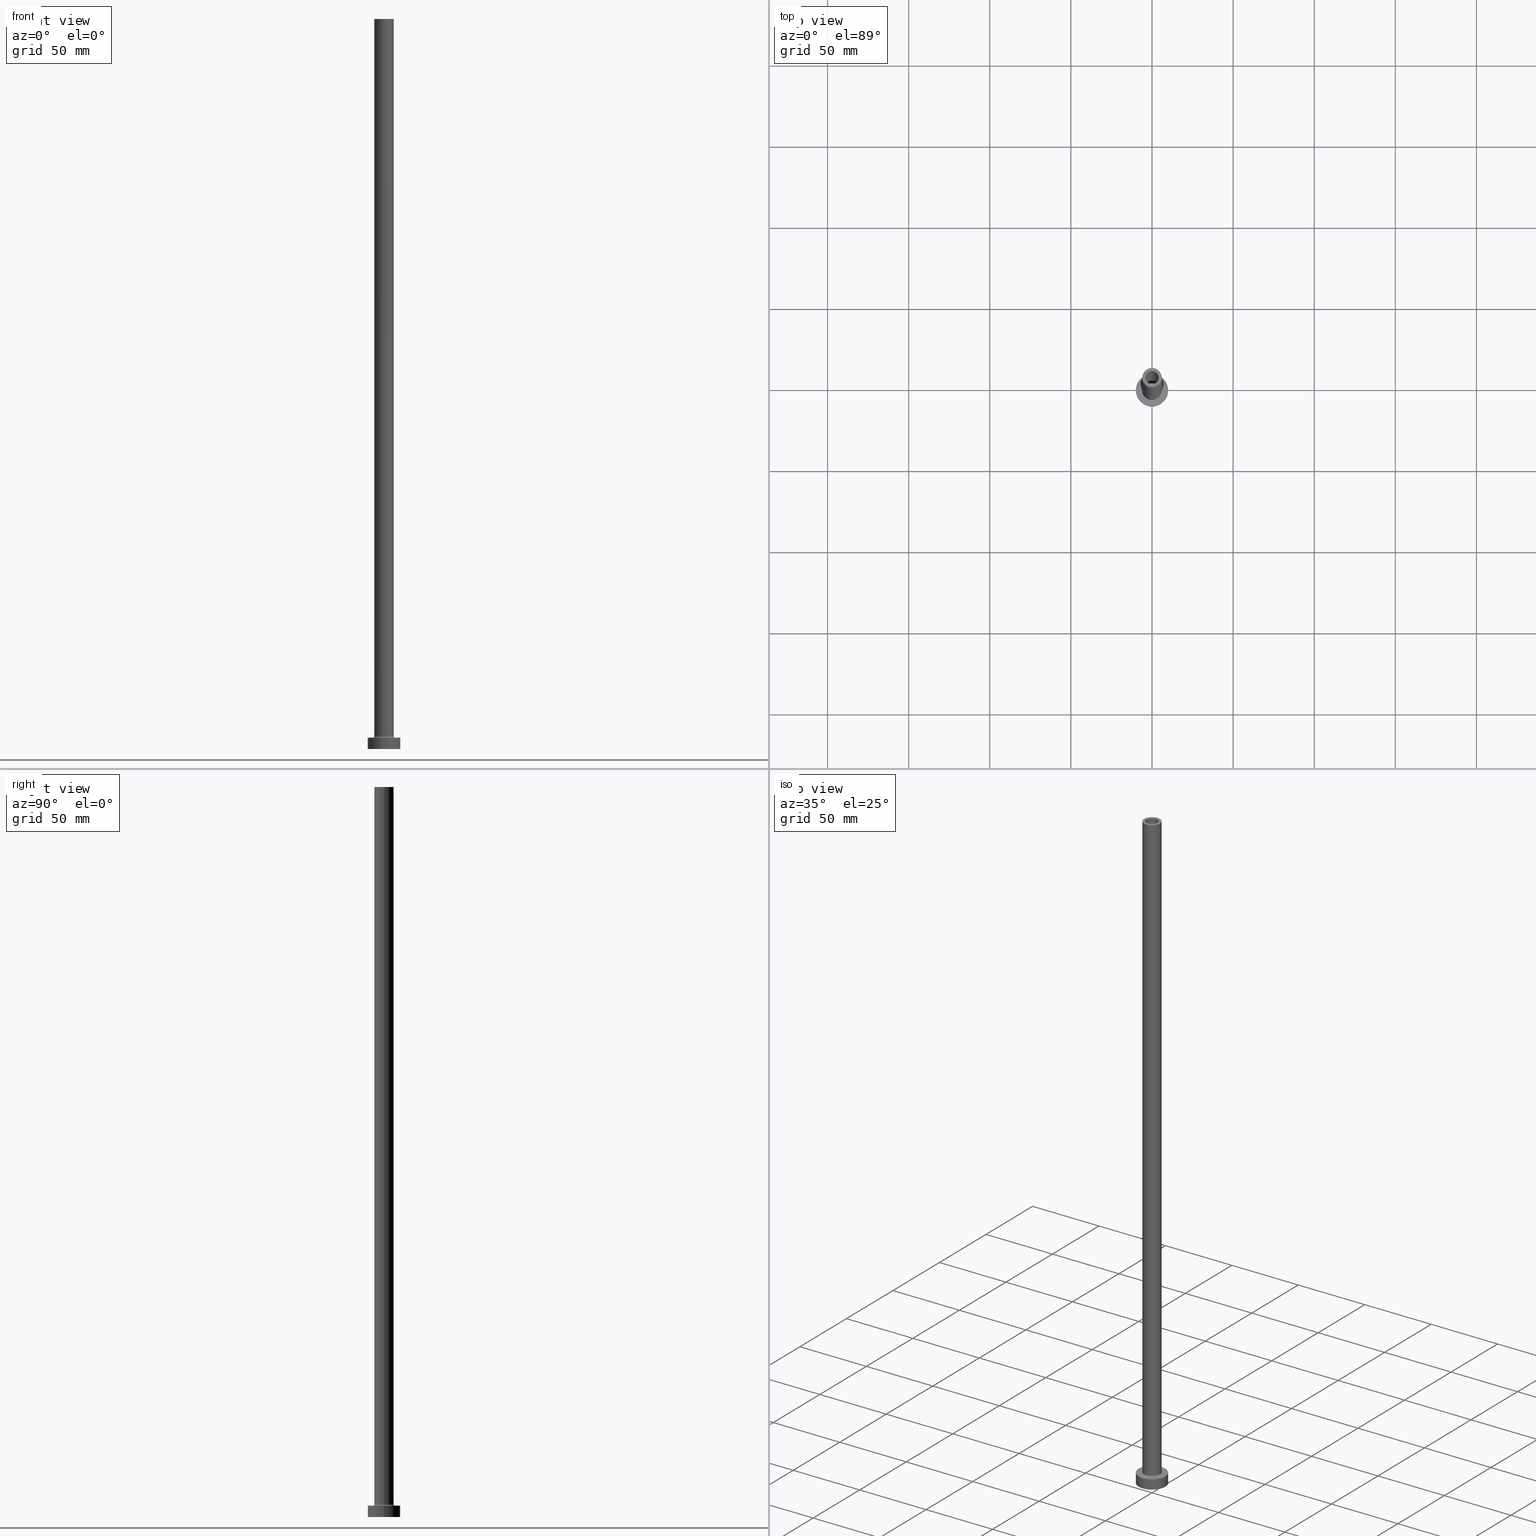
[diagram: canonical four-view strip — front | top / right | iso, engineering-drawing reading convention]
A machine part, canonical four-view strip (front | top / right | iso — engineering-drawing reading convention). The complete STEP part file that produces these views, byte-faithful:
ISO-10303-21;
HEADER;
FILE_DESCRIPTION (( 'STEP AP203' ),
    '1' );
FILE_NAME ('fe47.STEP',
    '2023-02-13T07:39:25',
    ( '' ),
    ( '' ),
    'SwSTEP 2.0',
    'SolidWorks 2019',
    '' );
FILE_SCHEMA (( 'CONFIG_CONTROL_DESIGN' ));
ENDSEC;

DATA;
#1 = ORIENTED_EDGE ( 'NONE', *, *, #76, .F. ) ;
#2 = CC_DESIGN_PERSON_AND_ORGANIZATION_ASSIGNMENT ( #300, #435, ( #51 ) ) ;
#3 = DIRECTION ( 'NONE',  ( 0.000000000000000000, 0.000000000000000000, 1.000000000000000000 ) ) ;
#4 = CIRCLE ( 'NONE', #266, 4.250000000000000000 ) ;
#5 = FACE_OUTER_BOUND ( 'NONE', #144, .T. ) ;
#6 = CIRCLE ( 'NONE', #346, 10.00000000000000000 ) ;
#7 = ORIENTED_EDGE ( 'NONE', *, *, #341, .F. ) ;
#8 = COORDINATED_UNIVERSAL_TIME_OFFSET ( 1, 0, .AHEAD. ) ;
#9 = PLANE ( 'NONE',  #257 ) ;
#10 = CIRCLE ( 'NONE', #359, 4.099999999999999645 ) ;
#11 = CARTESIAN_POINT ( 'NONE',  ( 0.000000000000000000, 0.000000000000000000, 450.0000000000000000 ) ) ;
#12 = EDGE_CURVE ( 'NONE', #15, #177, #4, .T. ) ;
#13 = APPROVAL_PERSON_ORGANIZATION ( #338, #192, #24 ) ;
#14 = CC_DESIGN_PERSON_AND_ORGANIZATION_ASSIGNMENT ( #99, #246, ( #151 ) ) ;
#15 = VERTEX_POINT ( 'NONE', #317 ) ;
#16 = VECTOR ( 'NONE', #42, 1000.000000000000000 ) ;
#17 =( LENGTH_UNIT ( ) NAMED_UNIT ( * ) SI_UNIT ( .MILLI., .METRE. ) );
#18 = APPLICATION_PROTOCOL_DEFINITION ( 'international standard', 'config_control_design', 1994, #254 ) ;
#19 = LINE ( 'NONE', #264, #418 ) ;
#20 = CIRCLE ( 'NONE', #165, 10.00000000000000000 ) ;
#21 = CARTESIAN_POINT ( 'NONE',  ( 0.000000000000000000, 0.000000000000000000, 7.000000000000000000 ) ) ;
#22 = ORIENTED_EDGE ( 'NONE', *, *, #443, .T. ) ;
#23 = ADVANCED_FACE ( 'NONE', ( #451 ), #140, .F. ) ;
#24 = APPROVAL_ROLE ( '' ) ;
#25 = DIRECTION ( 'NONE',  ( 1.000000000000000000, 0.000000000000000000, 0.000000000000000000 ) ) ;
#26 = ORIENTED_EDGE ( 'NONE', *, *, #251, .T. ) ;
#27 = EDGE_CURVE ( 'NONE', #84, #285, #459, .T. ) ;
#28 = ORIENTED_EDGE ( 'NONE', *, *, #251, .F. ) ;
#29 = DIRECTION ( 'NONE',  ( 1.000000000000000000, 0.000000000000000000, 0.000000000000000000 ) ) ;
#30 = LINE ( 'NONE', #189, #120 ) ;
#31 = CIRCLE ( 'NONE', #143, 6.000000000000000888 ) ;
#32 = CARTESIAN_POINT ( 'NONE',  ( 0.000000000000000000, 0.000000000000000000, 7.699999999999985079 ) ) ;
#33 = CC_DESIGN_PERSON_AND_ORGANIZATION_ASSIGNMENT ( #398, #77, ( #255 ) ) ;
#34 = CIRCLE ( 'NONE', #102, 6.000000000000000888 ) ;
#35 = EDGE_LOOP ( 'NONE', ( #273, #277, #184, #188 ) ) ;
#36 = CARTESIAN_POINT ( 'NONE',  ( 4.099999999999999645, 5.021051876504146399E-16, 450.0000000000000000 ) ) ;
#37 = CARTESIAN_POINT ( 'NONE',  ( 4.250000000000000000, 5.204748896376249713E-16, 417.0208152801712913 ) ) ;
#38 = CARTESIAN_POINT ( 'NONE',  ( 0.000000000000000000, 0.000000000000000000, 450.0000000000000000 ) ) ;
#39 = VERTEX_POINT ( 'NONE', #220 ) ;
#40 = AXIS2_PLACEMENT_3D ( 'NONE', #150, #423, #108 ) ;
#41 = PRODUCT_RELATED_PRODUCT_CATEGORY ( 'detail', '', ( #51 ) ) ;
#42 = DIRECTION ( 'NONE',  ( 0.000000000000000000, 0.000000000000000000, -1.000000000000000000 ) ) ;
#43 = DIRECTION ( 'NONE',  ( -1.000000000000000000, 1.224646799147353454E-16, 0.000000000000000000 ) ) ;
#44 = ADVANCED_FACE ( 'NONE', ( #417 ), #104, .T. ) ;
#45 = CARTESIAN_POINT ( 'NONE',  ( -6.000000000000000888, 0.000000000000000000, 450.0000000000000000 ) ) ;
#46 = AXIS2_PLACEMENT_3D ( 'NONE', #379, #387, #203 ) ;
#47 = EDGE_LOOP ( 'NONE', ( #244, #28 ) ) ;
#48 = MANIFOLD_SOLID_BREP ( 'Odebrat vysunut�m4', #138 ) ;
#49 = CARTESIAN_POINT ( 'NONE',  ( 0.000000000000000000, 0.000000000000000000, 417.0208152801712913 ) ) ;
#50 = DIRECTION ( 'NONE',  ( 0.000000000000000000, 0.000000000000000000, -1.000000000000000000 ) ) ;
#51 = PRODUCT ( 'fe47', 'fe47', '', ( #438 ) ) ;
#52 = EDGE_LOOP ( 'NONE', ( #312, #180, #354, #406 ) ) ;
#53 = ORIENTED_EDGE ( 'NONE', *, *, #373, .F. ) ;
#54 = EDGE_CURVE ( 'NONE', #285, #280, #428, .T. ) ;
#55 = PERSON_AND_ORGANIZATION ( #191, #356 ) ;
#56 = CARTESIAN_POINT ( 'NONE',  ( 0.000000000000000000, 0.000000000000000000, 450.0000000000000000 ) ) ;
#57 = ORIENTED_EDGE ( 'NONE', *, *, #454, .T. ) ;
#58 = EDGE_LOOP ( 'NONE', ( #316, #457 ) ) ;
#59 = CARTESIAN_POINT ( 'NONE',  ( 0.000000000000000000, 0.000000000000000000, 450.0000000000000000 ) ) ;
#60 = CARTESIAN_POINT ( 'NONE',  ( 6.700000000000001066, 0.000000000000000000, 6.999999999999992006 ) ) ;
#61 = EDGE_CURVE ( 'NONE', #84, #168, #407, .T. ) ;
#62 = DIRECTION ( 'NONE',  ( 0.000000000000000000, -1.000000000000000000, 0.000000000000000000 ) ) ;
#63 = ORIENTED_EDGE ( 'NONE', *, *, #202, .F. ) ;
#64 = ORIENTED_EDGE ( 'NONE', *, *, #353, .T. ) ;
#65 = AXIS2_PLACEMENT_3D ( 'NONE', #455, #62, #219 ) ;
#66 = SHAPE_DEFINITION_REPRESENTATION ( #170, #439 ) ;
#67 = DIRECTION ( 'NONE',  ( 1.000000000000000000, 0.000000000000000000, 0.000000000000000000 ) ) ;
#68 = VERTEX_POINT ( 'NONE', #409 ) ;
#69 = EDGE_CURVE ( 'NONE', #388, #303, #186, .T. ) ;
#70 = ORIENTED_EDGE ( 'NONE', *, *, #286, .T. ) ;
#71 = SECURITY_CLASSIFICATION ( '', '', #342 ) ;
#72 =( NAMED_UNIT ( * ) PLANE_ANGLE_UNIT ( ) SI_UNIT ( $, .RADIAN. ) );
#73 = AXIS2_PLACEMENT_3D ( 'NONE', #59, #218, #352 ) ;
#74 = AXIS2_PLACEMENT_3D ( 'NONE', #263, #399, #162 ) ;
#75 = ORIENTED_EDGE ( 'NONE', *, *, #341, .T. ) ;
#76 = EDGE_CURVE ( 'NONE', #177, #15, #268, .T. ) ;
#77 = PERSON_AND_ORGANIZATION_ROLE ( 'creator' ) ;
#78 = CARTESIAN_POINT ( 'NONE',  ( -10.00000000000000000, 0.000000000000000000, 0.000000000000000000 ) ) ;
#79 = EDGE_CURVE ( 'NONE', #258, #68, #347, .T. ) ;
#80 = DIRECTION ( 'NONE',  ( -1.000000000000000000, 0.000000000000000000, 0.000000000000000000 ) ) ;
#81 = AXIS2_PLACEMENT_3D ( 'NONE', #21, #335, #313 ) ;
#82 = AXIS2_PLACEMENT_3D ( 'NONE', #305, #382, #309 ) ;
#83 = CARTESIAN_POINT ( 'NONE',  ( 0.000000000000000000, 0.000000000000000000, 7.699999999999985079 ) ) ;
#84 = VERTEX_POINT ( 'NONE', #117 ) ;
#85 = VERTEX_POINT ( 'NONE', #195 ) ;
#86 = CARTESIAN_POINT ( 'NONE',  ( -6.700000000000001066, 8.205133554287267548E-16, 7.699999999999985079 ) ) ;
#87 = EDGE_CURVE ( 'NONE', #177, #386, #325, .T. ) ;
#88 = CC_DESIGN_APPROVAL ( #314, ( #71 ) ) ;
#89 = ORIENTED_EDGE ( 'NONE', *, *, #422, .F. ) ;
#90 = CARTESIAN_POINT ( 'NONE',  ( 0.000000000000000000, 0.000000000000000000, 0.000000000000000000 ) ) ;
#91 = LOCAL_TIME ( 8, 39, 25.00000000000000000, #209 ) ;
#92 = ORIENTED_EDGE ( 'NONE', *, *, #76, .T. ) ;
#93 = EDGE_LOOP ( 'NONE', ( #101, #358, #166, #248 ) ) ;
#94 = CARTESIAN_POINT ( 'NONE',  ( 0.000000000000000000, 0.000000000000000000, 0.000000000000000000 ) ) ;
#95 = DATE_AND_TIME ( #445, #452 ) ;
#96 = ADVANCED_FACE ( 'NONE', ( #297, #133 ), #236, .T. ) ;
#97 = PERSON_AND_ORGANIZATION_ROLE ( 'classification_officer' ) ;
#98 = APPROVAL ( #205, 'NEUR�EN�' ) ;
#99 = PERSON_AND_ORGANIZATION ( #191, #356 ) ;
#100 = VERTEX_POINT ( 'NONE', #344 ) ;
#101 = ORIENTED_EDGE ( 'NONE', *, *, #331, .F. ) ;
#102 = AXIS2_PLACEMENT_3D ( 'NONE', #119, #333, #230 ) ;
#103 = DATE_TIME_ROLE ( 'creation_date' ) ;
#104 = CYLINDRICAL_SURFACE ( 'NONE', #73, 6.000000000000000888 ) ;
#105 = LINE ( 'NONE', #318, #328 ) ;
#106 = CARTESIAN_POINT ( 'NONE',  ( 0.000000000000000000, 0.000000000000000000, 7.000000000000000000 ) ) ;
#107 = LOCAL_TIME ( 8, 39, 25.00000000000000000, #242 ) ;
#108 = DIRECTION ( 'NONE',  ( 1.000000000000000000, 0.000000000000000000, 0.000000000000000000 ) ) ;
#109 = UNCERTAINTY_MEASURE_WITH_UNIT (LENGTH_MEASURE( 1.000000000000000082E-05 ), #17, 'distance_accuracy_value', 'NONE');
#110 = AXIS2_PLACEMENT_3D ( 'NONE', #106, #389, #182 ) ;
#111 = AXIS2_PLACEMENT_3D ( 'NONE', #322, #289, #141 ) ;
#112 = CARTESIAN_POINT ( 'NONE',  ( 0.000000000000000000, 0.000000000000000000, 450.0000000000000000 ) ) ;
#113 = EDGE_CURVE ( 'NONE', #434, #303, #460, .T. ) ;
#114 = DIRECTION ( 'NONE',  ( -0.000000000000000000, -0.000000000000000000, -1.000000000000000000 ) ) ;
#115 = AXIS2_PLACEMENT_3D ( 'NONE', #458, #355, #283 ) ;
#116 = DIRECTION ( 'NONE',  ( 1.224646799147353207E-16, 1.000000000000000000, -0.000000000000000000 ) ) ;
#117 = CARTESIAN_POINT ( 'NONE',  ( -10.00000000000000000, 0.000000000000000000, 7.000000000000000000 ) ) ;
#118 = EDGE_CURVE ( 'NONE', #416, #39, #392, .T. ) ;
#119 = CARTESIAN_POINT ( 'NONE',  ( 0.000000000000000000, 0.000000000000000000, 7.699999999999985079 ) ) ;
#120 = VECTOR ( 'NONE', #287, 1000.000000000000000 ) ;
#121 = APPROVAL_ROLE ( '' ) ;
#122 = VECTOR ( 'NONE', #243, 1000.000000000000000 ) ;
#123 = AXIS2_PLACEMENT_3D ( 'NONE', #441, #215, #279 ) ;
#124 = DIRECTION ( 'NONE',  ( 1.000000000000000000, 0.000000000000000000, 0.000000000000000000 ) ) ;
#125 = CALENDAR_DATE ( 2023, 13, 2 ) ;
#126 = DIRECTION ( 'NONE',  ( -0.000000000000000000, -0.000000000000000000, -1.000000000000000000 ) ) ;
#127 = ORIENTED_EDGE ( 'NONE', *, *, #12, .F. ) ;
#128 =( GEOMETRIC_REPRESENTATION_CONTEXT ( 3 ) GLOBAL_UNCERTAINTY_ASSIGNED_CONTEXT ( ( #109 ) ) GLOBAL_UNIT_ASSIGNED_CONTEXT ( ( #17, #72, #377 ) ) REPRESENTATION_CONTEXT ( 'NONE', 'WORKASPACE' ) );
#129 = CARTESIAN_POINT ( 'NONE',  ( 0.000000000000000000, 0.000000000000000000, 7.000000000000000000 ) ) ;
#130 = CARTESIAN_POINT ( 'NONE',  ( 0.000000000000000000, 0.000000000000000000, 405.0000000000000000 ) ) ;
#131 = DIRECTION ( 'NONE',  ( 1.000000000000000000, 0.000000000000000000, 0.000000000000000000 ) ) ;
#132 = CIRCLE ( 'NONE', #372, 6.700000000000001066 ) ;
#133 = FACE_OUTER_BOUND ( 'NONE', #58, .T. ) ;
#134 = CALENDAR_DATE ( 2023, 13, 2 ) ;
#135 = DIRECTION ( 'NONE',  ( 0.000000000000000000, 0.000000000000000000, -1.000000000000000000 ) ) ;
#136 = DIRECTION ( 'NONE',  ( 1.000000000000000000, 0.000000000000000000, 0.000000000000000000 ) ) ;
#137 = DIRECTION ( 'NONE',  ( 0.000000000000000000, 0.000000000000000000, 1.000000000000000000 ) ) ;
#138 = CLOSED_SHELL ( 'NONE', ( #197, #169, #156, #427, #431, #294, #96, #149, #44, #291, #227, #366, #334, #23 ) ) ;
#139 = CC_DESIGN_APPROVAL ( #98, ( #255 ) ) ;
#140 = CYLINDRICAL_SURFACE ( 'NONE', #301, 4.099999999999999645 ) ;
#141 = DIRECTION ( 'NONE',  ( -1.000000000000000000, 0.000000000000000000, 0.000000000000000000 ) ) ;
#142 = EDGE_CURVE ( 'NONE', #446, #386, #185, .T. ) ;
#143 = AXIS2_PLACEMENT_3D ( 'NONE', #32, #3, #288 ) ;
#144 = EDGE_LOOP ( 'NONE', ( #7, #360, #339, #153 ) ) ;
#145 = DIRECTION ( 'NONE',  ( 1.000000000000000000, 0.000000000000000000, 0.000000000000000000 ) ) ;
#146 = FACE_OUTER_BOUND ( 'NONE', #211, .T. ) ;
#147 = ORIENTED_EDGE ( 'NONE', *, *, #353, .F. ) ;
#148 = CC_DESIGN_SECURITY_CLASSIFICATION ( #71, ( #151 ) ) ;
#149 = ADVANCED_FACE ( 'NONE', ( #412, #381 ), #207, .F. ) ;
#150 = CARTESIAN_POINT ( 'NONE',  ( 0.000000000000000000, 0.000000000000000000, 450.0000000000000000 ) ) ;
#151 = PRODUCT_DEFINITION_FORMATION_WITH_SPECIFIED_SOURCE ( 'LIBOVOLN�', '', #51, .NOT_KNOWN. ) ;
#152 = CIRCLE ( 'NONE', #450, 0.7000000000000000666 ) ;
#153 = ORIENTED_EDGE ( 'NONE', *, *, #391, .F. ) ;
#154 = APPROVAL_ROLE ( '' ) ;
#155 = DIRECTION ( 'NONE',  ( -1.000000000000000000, 0.000000000000000000, 0.000000000000000000 ) ) ;
#156 = ADVANCED_FACE ( 'NONE', ( #404 ), #201, .F. ) ;
#157 = DIRECTION ( 'NONE',  ( 0.000000000000000000, 0.000000000000000000, -1.000000000000000000 ) ) ;
#158 = AXIS2_PLACEMENT_3D ( 'NONE', #420, #378, #29 ) ;
#159 = AXIS2_PLACEMENT_3D ( 'NONE', #216, #350, #380 ) ;
#160 = DIRECTION ( 'NONE',  ( 0.000000000000000000, 0.000000000000000000, 1.000000000000000000 ) ) ;
#161 = DIRECTION ( 'NONE',  ( 0.000000000000000000, 0.000000000000000000, -1.000000000000000000 ) ) ;
#162 = DIRECTION ( 'NONE',  ( -1.000000000000000000, 0.000000000000000000, 0.000000000000000000 ) ) ;
#163 = EDGE_CURVE ( 'NONE', #168, #84, #6, .T. ) ;
#164 = AXIS2_PLACEMENT_3D ( 'NONE', #38, #402, #155 ) ;
#165 = AXIS2_PLACEMENT_3D ( 'NONE', #90, #160, #370 ) ;
#166 = ORIENTED_EDGE ( 'NONE', *, *, #118, .F. ) ;
#167 = FACE_BOUND ( 'NONE', #403, .T. ) ;
#168 = VERTEX_POINT ( 'NONE', #171 ) ;
#169 = ADVANCED_FACE ( 'NONE', ( #234 ), #444, .F. ) ;
#170 = PRODUCT_DEFINITION_SHAPE ( 'NONE', 'NONE',  #255 ) ;
#171 = CARTESIAN_POINT ( 'NONE',  ( 10.00000000000000000, 1.224646799147353256E-15, 7.000000000000000000 ) ) ;
#172 = ORIENTED_EDGE ( 'NONE', *, *, #324, .T. ) ;
#173 = CC_DESIGN_APPROVAL ( #192, ( #151 ) ) ;
#174 = ORIENTED_EDGE ( 'NONE', *, *, #113, .T. ) ;
#175 = CC_DESIGN_PERSON_AND_ORGANIZATION_ASSIGNMENT ( #55, #310, ( #151 ) ) ;
#176 = CARTESIAN_POINT ( 'NONE',  ( 0.000000000000000000, 0.000000000000000000, 7.699999999999985079 ) ) ;
#177 = VERTEX_POINT ( 'NONE', #410 ) ;
#178 = DIRECTION ( 'NONE',  ( -0.000000000000000000, -0.000000000000000000, -1.000000000000000000 ) ) ;
#179 = PERSON_AND_ORGANIZATION ( #191, #356 ) ;
#180 = ORIENTED_EDGE ( 'NONE', *, *, #87, .T. ) ;
#181 = CARTESIAN_POINT ( 'NONE',  ( -4.099999999999999645, 0.000000000000000000, 450.0000000000000000 ) ) ;
#182 = DIRECTION ( 'NONE',  ( 1.000000000000000000, 0.000000000000000000, 0.000000000000000000 ) ) ;
#183 = FACE_BOUND ( 'NONE', #415, .T. ) ;
#184 = ORIENTED_EDGE ( 'NONE', *, *, #27, .T. ) ;
#185 = CIRCLE ( 'NONE', #213, 4.250000000000000000 ) ;
#186 = LINE ( 'NONE', #413, #290 ) ;
#187 = DIRECTION ( 'NONE',  ( -0.000000000000000000, -0.000000000000000000, -1.000000000000000000 ) ) ;
#188 = ORIENTED_EDGE ( 'NONE', *, *, #54, .T. ) ;
#189 = CARTESIAN_POINT ( 'NONE',  ( 6.000000000000000888, 7.347880794884120722E-16, 450.0000000000000000 ) ) ;
#190 = FACE_OUTER_BOUND ( 'NONE', #238, .T. ) ;
#191 = PERSON ( 'NEUR�EN�', 'NEUR�EN�', 'NEUR�EN�', ('NEUR�EN�'), ('NEUR�EN�'), ('NEUR�EN�') ) ;
#192 = APPROVAL ( #414, 'NEUR�EN�' ) ;
#193 = DATE_AND_TIME ( #199, #304 ) ;
#194 = ORIENTED_EDGE ( 'NONE', *, *, #79, .F. ) ;
#195 = CARTESIAN_POINT ( 'NONE',  ( 6.000000000000000888, 7.347880794884120722E-16, 7.699999999999985079 ) ) ;
#196 = CARTESIAN_POINT ( 'NONE',  ( -4.250000000000000000, 0.000000000000000000, 0.000000000000000000 ) ) ;
#197 = ADVANCED_FACE ( 'NONE', ( #146 ), #253, .F. ) ;
#198 = ORIENTED_EDGE ( 'NONE', *, *, #163, .F. ) ;
#199 = CALENDAR_DATE ( 2023, 13, 2 ) ;
#200 = CARTESIAN_POINT ( 'NONE',  ( 4.099999999999999645, 5.021051876504146399E-16, 405.0000000000000000 ) ) ;
#201 = TOROIDAL_SURFACE ( 'NONE', #363, 6.700000000000001066, 0.6999999999999999556 ) ;
#202 = EDGE_CURVE ( 'NONE', #100, #39, #152, .T. ) ;
#203 = DIRECTION ( 'NONE',  ( -1.000000000000000000, 0.000000000000000000, 0.000000000000000000 ) ) ;
#204 = ORIENTED_EDGE ( 'NONE', *, *, #443, .F. ) ;
#205 = APPROVAL_STATUS ( 'not_yet_approved' ) ;
#206 = CARTESIAN_POINT ( 'NONE',  ( 10.00000000000000000, 1.224646799147353256E-15, 0.000000000000000000 ) ) ;
#207 = PLANE ( 'NONE',  #261 ) ;
#208 = DIRECTION ( 'NONE',  ( 0.000000000000000000, 0.000000000000000000, -1.000000000000000000 ) ) ;
#209 = COORDINATED_UNIVERSAL_TIME_OFFSET ( 1, 0, .AHEAD. ) ;
#210 = ORIENTED_EDGE ( 'NONE', *, *, #245, .F. ) ;
#211 = EDGE_LOOP ( 'NONE', ( #256, #57, #210, #453 ) ) ;
#212 = ORIENTED_EDGE ( 'NONE', *, *, #237, .F. ) ;
#213 = AXIS2_PLACEMENT_3D ( 'NONE', #94, #178, #136 ) ;
#214 = CARTESIAN_POINT ( 'NONE',  ( 0.000000000000000000, 0.000000000000000000, 0.000000000000000000 ) ) ;
#215 = DIRECTION ( 'NONE',  ( 0.000000000000000000, 0.000000000000000000, 1.000000000000000000 ) ) ;
#216 = CARTESIAN_POINT ( 'NONE',  ( 0.000000000000000000, 0.000000000000000000, 450.0000000000000000 ) ) ;
#217 = ORIENTED_EDGE ( 'NONE', *, *, #331, .T. ) ;
#218 = DIRECTION ( 'NONE',  ( -0.000000000000000000, -0.000000000000000000, -1.000000000000000000 ) ) ;
#219 = DIRECTION ( 'NONE',  ( 0.000000000000000000, 0.000000000000000000, -1.000000000000000000 ) ) ;
#220 = CARTESIAN_POINT ( 'NONE',  ( -6.700000000000001066, 8.205133554287267548E-16, 6.999999999999992006 ) ) ;
#221 = CYLINDRICAL_SURFACE ( 'NONE', #111, 4.250000000000000000 ) ;
#222 = ORIENTED_EDGE ( 'NONE', *, *, #118, .T. ) ;
#223 = AXIS2_PLACEMENT_3D ( 'NONE', #49, #208, #449 ) ;
#224 = CC_DESIGN_PERSON_AND_ORGANIZATION_ASSIGNMENT ( #411, #97, ( #71 ) ) ;
#225 = DESIGN_CONTEXT ( 'detailed design', #296, 'design' ) ;
#226 = DIRECTION ( 'NONE',  ( 0.000000000000000000, 0.000000000000000000, 1.000000000000000000 ) ) ;
#227 = ADVANCED_FACE ( 'NONE', ( #365 ), #437, .F. ) ;
#228 = DIRECTION ( 'NONE',  ( 0.000000000000000000, 0.000000000000000000, 1.000000000000000000 ) ) ;
#229 = CARTESIAN_POINT ( 'NONE',  ( 0.000000000000000000, 0.000000000000000000, 0.000000000000000000 ) ) ;
#230 = DIRECTION ( 'NONE',  ( 1.000000000000000000, 0.000000000000000000, 0.000000000000000000 ) ) ;
#231 = CYLINDRICAL_SURFACE ( 'NONE', #433, 10.00000000000000000 ) ;
#232 = APPLICATION_PROTOCOL_DEFINITION ( 'international standard', 'config_control_design', 1994, #296 ) ;
#233 = LINE ( 'NONE', #432, #319 ) ;
#234 = FACE_OUTER_BOUND ( 'NONE', #52, .T. ) ;
#235 = ORIENTED_EDGE ( 'NONE', *, *, #113, .F. ) ;
#236 = PLANE ( 'NONE',  #81 ) ;
#237 = EDGE_CURVE ( 'NONE', #85, #100, #34, .T. ) ;
#238 = EDGE_LOOP ( 'NONE', ( #302, #92, #70, #442 ) ) ;
#239 = DIRECTION ( 'NONE',  ( 0.000000000000000000, 0.000000000000000000, 1.000000000000000000 ) ) ;
#240 = APPROVAL_DATE_TIME ( #95, #192 ) ;
#241 = EDGE_LOOP ( 'NONE', ( #198, #426, #26, #374 ) ) ;
#242 = COORDINATED_UNIVERSAL_TIME_OFFSET ( 1, 0, .AHEAD. ) ;
#243 = DIRECTION ( 'NONE',  ( -0.000000000000000000, -0.000000000000000000, -1.000000000000000000 ) ) ;
#244 = ORIENTED_EDGE ( 'NONE', *, *, #54, .F. ) ;
#245 = EDGE_CURVE ( 'NONE', #303, #434, #10, .T. ) ;
#246 = PERSON_AND_ORGANIZATION_ROLE ( 'creator' ) ;
#247 = AXIS2_PLACEMENT_3D ( 'NONE', #83, #267, #299 ) ;
#248 = ORIENTED_EDGE ( 'NONE', *, *, #324, .F. ) ;
#249 = DATE_AND_TIME ( #134, #91 ) ;
#250 = DIRECTION ( 'NONE',  ( -0.000000000000000000, -0.000000000000000000, -1.000000000000000000 ) ) ;
#251 = EDGE_CURVE ( 'NONE', #280, #285, #20, .T. ) ;
#252 = FACE_OUTER_BOUND ( 'NONE', #405, .T. ) ;
#253 = CYLINDRICAL_SURFACE ( 'NONE', #46, 4.099999999999999645 ) ;
#254 = APPLICATION_CONTEXT ( 'configuration controlled 3d designs of mechanical parts and assemblies' ) ;
#255 = PRODUCT_DEFINITION ( 'NEZN�M�', '', #151, #225 ) ;
#256 = ORIENTED_EDGE ( 'NONE', *, *, #373, .T. ) ;
#257 = AXIS2_PLACEMENT_3D ( 'NONE', #11, #293, #362 ) ;
#258 = VERTEX_POINT ( 'NONE', #45 ) ;
#259 = EDGE_CURVE ( 'NONE', #168, #280, #233, .T. ) ;
#260 = LINE ( 'NONE', #367, #16 ) ;
#261 = AXIS2_PLACEMENT_3D ( 'NONE', #349, #239, #371 ) ;
#262 = FACE_OUTER_BOUND ( 'NONE', #241, .T. ) ;
#263 = CARTESIAN_POINT ( 'NONE',  ( 0.000000000000000000, 0.000000000000000000, 7.000000000000000000 ) ) ;
#264 = CARTESIAN_POINT ( 'NONE',  ( -4.250000000000000000, 0.000000000000000000, 417.0208152801712913 ) ) ;
#265 = CARTESIAN_POINT ( 'NONE',  ( 0.000000000000000000, 0.000000000000000000, 7.000000000000000000 ) ) ;
#266 = AXIS2_PLACEMENT_3D ( 'NONE', #130, #275, #25 ) ;
#267 = DIRECTION ( 'NONE',  ( 0.000000000000000000, 0.000000000000000000, 1.000000000000000000 ) ) ;
#268 = CIRCLE ( 'NONE', #82, 4.250000000000000000 ) ;
#269 = DATE_AND_TIME ( #125, #307 ) ;
#270 = COORDINATED_UNIVERSAL_TIME_OFFSET ( 1, 0, .AHEAD. ) ;
#271 = EDGE_LOOP ( 'NONE', ( #89, #194, #343, #217 ) ) ;
#272 = CIRCLE ( 'NONE', #357, 4.099999999999999645 ) ;
#273 = ORIENTED_EDGE ( 'NONE', *, *, #259, .F. ) ;
#274 = COORDINATED_UNIVERSAL_TIME_OFFSET ( 1, 0, .AHEAD. ) ;
#275 = DIRECTION ( 'NONE',  ( 0.000000000000000000, 0.000000000000000000, 1.000000000000000000 ) ) ;
#276 = AXIS2_PLACEMENT_3D ( 'NONE', #214, #447, #131 ) ;
#277 = ORIENTED_EDGE ( 'NONE', *, *, #61, .F. ) ;
#278 = CARTESIAN_POINT ( 'NONE',  ( -10.00000000000000000, 0.000000000000000000, 7.000000000000000000 ) ) ;
#279 = DIRECTION ( 'NONE',  ( 1.000000000000000000, 0.000000000000000000, 0.000000000000000000 ) ) ;
#280 = VERTEX_POINT ( 'NONE', #206 ) ;
#281 = CC_DESIGN_DATE_AND_TIME_ASSIGNMENT ( #249, #103, ( #255 ) ) ;
#282 = DIRECTION ( 'NONE',  ( 1.000000000000000000, 0.000000000000000000, 0.000000000000000000 ) ) ;
#283 = DIRECTION ( 'NONE',  ( 1.000000000000000000, 0.000000000000000000, -0.000000000000000000 ) ) ;
#284 = DIRECTION ( 'NONE',  ( -1.000000000000000000, 0.000000000000000000, 0.000000000000000000 ) ) ;
#285 = VERTEX_POINT ( 'NONE', #78 ) ;
#286 = EDGE_CURVE ( 'NONE', #15, #446, #19, .T. ) ;
#287 = DIRECTION ( 'NONE',  ( -0.000000000000000000, -0.000000000000000000, -1.000000000000000000 ) ) ;
#288 = DIRECTION ( 'NONE',  ( 1.000000000000000000, 0.000000000000000000, 0.000000000000000000 ) ) ;
#289 = DIRECTION ( 'NONE',  ( 0.000000000000000000, 0.000000000000000000, -1.000000000000000000 ) ) ;
#290 = VECTOR ( 'NONE', #50, 1000.000000000000000 ) ;
#291 = ADVANCED_FACE ( 'NONE', ( #167, #327 ), #9, .T. ) ;
#292 = EDGE_LOOP ( 'NONE', ( #425, #75 ) ) ;
#293 = DIRECTION ( 'NONE',  ( 0.000000000000000000, 0.000000000000000000, 1.000000000000000000 ) ) ;
#294 = ADVANCED_FACE ( 'NONE', ( #361 ), #429, .T. ) ;
#295 = CIRCLE ( 'NONE', #65, 0.7000000000000000666 ) ;
#296 = APPLICATION_CONTEXT ( 'configuration controlled 3d designs of mechanical parts and assemblies' ) ;
#297 = FACE_BOUND ( 'NONE', #424, .T. ) ;
#298 = DIRECTION ( 'NONE',  ( 1.000000000000000000, 0.000000000000000000, 0.000000000000000000 ) ) ;
#299 = DIRECTION ( 'NONE',  ( 1.000000000000000000, 0.000000000000000000, 0.000000000000000000 ) ) ;
#300 = PERSON_AND_ORGANIZATION ( #191, #356 ) ;
#301 = AXIS2_PLACEMENT_3D ( 'NONE', #56, #135, #284 ) ;
#302 = ORIENTED_EDGE ( 'NONE', *, *, #87, .F. ) ;
#303 = VERTEX_POINT ( 'NONE', #400 ) ;
#304 = LOCAL_TIME ( 8, 39, 25.00000000000000000, #8 ) ;
#305 = CARTESIAN_POINT ( 'NONE',  ( 0.000000000000000000, 0.000000000000000000, 405.0000000000000000 ) ) ;
#306 = AXIS2_PLACEMENT_3D ( 'NONE', #229, #226, #298 ) ;
#307 = LOCAL_TIME ( 8, 39, 25.00000000000000000, #270 ) ;
#308 = DIRECTION ( 'NONE',  ( 1.000000000000000000, 0.000000000000000000, 0.000000000000000000 ) ) ;
#309 = DIRECTION ( 'NONE',  ( 1.000000000000000000, 0.000000000000000000, 0.000000000000000000 ) ) ;
#310 = PERSON_AND_ORGANIZATION_ROLE ( 'design_supplier' ) ;
#311 = CIRCLE ( 'NONE', #364, 4.099999999999999645 ) ;
#312 = ORIENTED_EDGE ( 'NONE', *, *, #12, .T. ) ;
#313 = DIRECTION ( 'NONE',  ( 1.000000000000000000, 0.000000000000000000, -0.000000000000000000 ) ) ;
#314 = APPROVAL ( #393, 'NEUR�EN�' ) ;
#315 = VERTEX_POINT ( 'NONE', #36 ) ;
#316 = ORIENTED_EDGE ( 'NONE', *, *, #61, .T. ) ;
#317 = CARTESIAN_POINT ( 'NONE',  ( -4.250000000000000000, 0.000000000000000000, 405.0000000000000000 ) ) ;
#318 = CARTESIAN_POINT ( 'NONE',  ( -6.000000000000000888, 0.000000000000000000, 450.0000000000000000 ) ) ;
#319 = VECTOR ( 'NONE', #430, 1000.000000000000000 ) ;
#320 = EDGE_CURVE ( 'NONE', #386, #446, #336, .T. ) ;
#321 = EDGE_LOOP ( 'NONE', ( #448, #22, #348, #235 ) ) ;
#322 = CARTESIAN_POINT ( 'NONE',  ( 0.000000000000000000, 0.000000000000000000, 417.0208152801712913 ) ) ;
#323 = APPROVAL_DATE_TIME ( #193, #314 ) ;
#324 = EDGE_CURVE ( 'NONE', #85, #416, #295, .T. ) ;
#325 = LINE ( 'NONE', #37, #408 ) ;
#326 = ORIENTED_EDGE ( 'NONE', *, *, #320, .F. ) ;
#327 = FACE_OUTER_BOUND ( 'NONE', #292, .T. ) ;
#328 = VECTOR ( 'NONE', #250, 1000.000000000000000 ) ;
#329 = APPROVAL_PERSON_ORGANIZATION ( #369, #98, #121 ) ;
#330 = DIRECTION ( 'NONE',  ( 1.000000000000000000, 0.000000000000000000, 0.000000000000000000 ) ) ;
#331 = EDGE_CURVE ( 'NONE', #100, #85, #31, .T. ) ;
#332 = CIRCLE ( 'NONE', #40, 6.000000000000000888 ) ;
#333 = DIRECTION ( 'NONE',  ( 0.000000000000000000, 0.000000000000000000, 1.000000000000000000 ) ) ;
#334 = ADVANCED_FACE ( 'NONE', ( #183, #252 ), #461, .F. ) ;
#335 = DIRECTION ( 'NONE',  ( 0.000000000000000000, 0.000000000000000000, 1.000000000000000000 ) ) ;
#336 = CIRCLE ( 'NONE', #276, 4.250000000000000000 ) ;
#337 = DIRECTION ( 'NONE',  ( 0.000000000000000000, 0.000000000000000000, 1.000000000000000000 ) ) ;
#338 = PERSON_AND_ORGANIZATION ( #191, #356 ) ;
#339 = ORIENTED_EDGE ( 'NONE', *, *, #237, .T. ) ;
#340 = ORIENTED_EDGE ( 'NONE', *, *, #142, .F. ) ;
#341 = EDGE_CURVE ( 'NONE', #68, #258, #332, .T. ) ;
#342 = SECURITY_CLASSIFICATION_LEVEL ( 'unclassified' ) ;
#343 = ORIENTED_EDGE ( 'NONE', *, *, #391, .T. ) ;
#344 = CARTESIAN_POINT ( 'NONE',  ( -6.000000000000000888, 0.000000000000000000, 7.699999999999985079 ) ) ;
#345 = DATE_AND_TIME ( #376, #107 ) ;
#346 = AXIS2_PLACEMENT_3D ( 'NONE', #456, #337, #282 ) ;
#347 = CIRCLE ( 'NONE', #159, 6.000000000000000888 ) ;
#348 = ORIENTED_EDGE ( 'NONE', *, *, #69, .T. ) ;
#349 = CARTESIAN_POINT ( 'NONE',  ( 0.000000000000000000, 0.000000000000000000, 0.000000000000000000 ) ) ;
#350 = DIRECTION ( 'NONE',  ( 0.000000000000000000, 0.000000000000000000, 1.000000000000000000 ) ) ;
#351 = APPROVAL_PERSON_ORGANIZATION ( #179, #314, #154 ) ;
#352 = DIRECTION ( 'NONE',  ( -1.000000000000000000, 0.000000000000000000, 0.000000000000000000 ) ) ;
#353 = EDGE_CURVE ( 'NONE', #39, #416, #132, .T. ) ;
#354 = ORIENTED_EDGE ( 'NONE', *, *, #320, .T. ) ;
#355 = DIRECTION ( 'NONE',  ( 0.000000000000000000, 0.000000000000000000, 1.000000000000000000 ) ) ;
#356 = ORGANIZATION ( 'NEUR�EN�', 'NEUR�EN�', '' ) ;
#357 = AXIS2_PLACEMENT_3D ( 'NONE', #401, #228, #330 ) ;
#358 = ORIENTED_EDGE ( 'NONE', *, *, #202, .T. ) ;
#359 = AXIS2_PLACEMENT_3D ( 'NONE', #440, #436, #124 ) ;
#360 = ORIENTED_EDGE ( 'NONE', *, *, #422, .T. ) ;
#361 = FACE_OUTER_BOUND ( 'NONE', #35, .T. ) ;
#362 = DIRECTION ( 'NONE',  ( 1.000000000000000000, 0.000000000000000000, -0.000000000000000000 ) ) ;
#363 = AXIS2_PLACEMENT_3D ( 'NONE', #176, #137, #375 ) ;
#364 = AXIS2_PLACEMENT_3D ( 'NONE', #112, #394, #67 ) ;
#365 = FACE_OUTER_BOUND ( 'NONE', #390, .T. ) ;
#366 = ADVANCED_FACE ( 'NONE', ( #190 ), #221, .F. ) ;
#367 = CARTESIAN_POINT ( 'NONE',  ( 4.099999999999999645, 5.021051876504146399E-16, 450.0000000000000000 ) ) ;
#368 = APPROVAL_DATE_TIME ( #269, #98 ) ;
#369 = PERSON_AND_ORGANIZATION ( #191, #356 ) ;
#370 = DIRECTION ( 'NONE',  ( 1.000000000000000000, 0.000000000000000000, 0.000000000000000000 ) ) ;
#371 = DIRECTION ( 'NONE',  ( 1.000000000000000000, 0.000000000000000000, -0.000000000000000000 ) ) ;
#372 = AXIS2_PLACEMENT_3D ( 'NONE', #421, #187, #145 ) ;
#373 = EDGE_CURVE ( 'NONE', #388, #315, #311, .T. ) ;
#374 = ORIENTED_EDGE ( 'NONE', *, *, #27, .F. ) ;
#375 = DIRECTION ( 'NONE',  ( 1.000000000000000000, 0.000000000000000000, 0.000000000000000000 ) ) ;
#376 = CALENDAR_DATE ( 2023, 13, 2 ) ;
#377 =( NAMED_UNIT ( * ) SI_UNIT ( $, .STERADIAN. ) SOLID_ANGLE_UNIT ( ) );
#378 = DIRECTION ( 'NONE',  ( 0.000000000000000000, 0.000000000000000000, 1.000000000000000000 ) ) ;
#379 = CARTESIAN_POINT ( 'NONE',  ( 0.000000000000000000, 0.000000000000000000, 450.0000000000000000 ) ) ;
#380 = DIRECTION ( 'NONE',  ( 1.000000000000000000, 0.000000000000000000, 0.000000000000000000 ) ) ;
#381 = FACE_OUTER_BOUND ( 'NONE', #47, .T. ) ;
#382 = DIRECTION ( 'NONE',  ( 0.000000000000000000, 0.000000000000000000, 1.000000000000000000 ) ) ;
#383 = DATE_TIME_ROLE ( 'classification_date' ) ;
#384 = EDGE_LOOP ( 'NONE', ( #340, #326 ) ) ;
#385 = AXIS2_PLACEMENT_3D ( 'NONE', #129, #126, #308 ) ;
#386 = VERTEX_POINT ( 'NONE', #419 ) ;
#387 = DIRECTION ( 'NONE',  ( 0.000000000000000000, 0.000000000000000000, -1.000000000000000000 ) ) ;
#388 = VERTEX_POINT ( 'NONE', #181 ) ;
#389 = DIRECTION ( 'NONE',  ( 0.000000000000000000, 0.000000000000000000, 1.000000000000000000 ) ) ;
#390 = EDGE_LOOP ( 'NONE', ( #63, #212, #172, #147 ) ) ;
#391 = EDGE_CURVE ( 'NONE', #258, #100, #105, .T. ) ;
#392 = CIRCLE ( 'NONE', #385, 6.700000000000001066 ) ;
#393 = APPROVAL_STATUS ( 'not_yet_approved' ) ;
#394 = DIRECTION ( 'NONE',  ( 0.000000000000000000, 0.000000000000000000, 1.000000000000000000 ) ) ;
#395 = CC_DESIGN_DATE_AND_TIME_ASSIGNMENT ( #345, #383, ( #71 ) ) ;
#396 = ORIENTED_EDGE ( 'NONE', *, *, #245, .T. ) ;
#397 = CYLINDRICAL_SURFACE ( 'NONE', #164, 6.000000000000000888 ) ;
#398 = PERSON_AND_ORGANIZATION ( #191, #356 ) ;
#399 = DIRECTION ( 'NONE',  ( -0.000000000000000000, -0.000000000000000000, -1.000000000000000000 ) ) ;
#400 = CARTESIAN_POINT ( 'NONE',  ( -4.099999999999999645, 0.000000000000000000, 405.0000000000000000 ) ) ;
#401 = CARTESIAN_POINT ( 'NONE',  ( 0.000000000000000000, 0.000000000000000000, 450.0000000000000000 ) ) ;
#402 = DIRECTION ( 'NONE',  ( -0.000000000000000000, -0.000000000000000000, -1.000000000000000000 ) ) ;
#403 = EDGE_LOOP ( 'NONE', ( #53, #204 ) ) ;
#404 = FACE_OUTER_BOUND ( 'NONE', #93, .T. ) ;
#405 = EDGE_LOOP ( 'NONE', ( #127, #1 ) ) ;
#406 = ORIENTED_EDGE ( 'NONE', *, *, #286, .F. ) ;
#407 = CIRCLE ( 'NONE', #110, 10.00000000000000000 ) ;
#408 = VECTOR ( 'NONE', #161, 1000.000000000000000 ) ;
#409 = CARTESIAN_POINT ( 'NONE',  ( 6.000000000000000888, 7.347880794884120722E-16, 450.0000000000000000 ) ) ;
#410 = CARTESIAN_POINT ( 'NONE',  ( 4.250000000000000000, 5.204748896376249713E-16, 405.0000000000000000 ) ) ;
#411 = PERSON_AND_ORGANIZATION ( #191, #356 ) ;
#412 = FACE_BOUND ( 'NONE', #384, .T. ) ;
#413 = CARTESIAN_POINT ( 'NONE',  ( -4.099999999999999645, 0.000000000000000000, 450.0000000000000000 ) ) ;
#414 = APPROVAL_STATUS ( 'not_yet_approved' ) ;
#415 = EDGE_LOOP ( 'NONE', ( #396, #174 ) ) ;
#416 = VERTEX_POINT ( 'NONE', #60 ) ;
#417 = FACE_OUTER_BOUND ( 'NONE', #271, .T. ) ;
#418 = VECTOR ( 'NONE', #157, 1000.000000000000000 ) ;
#419 = CARTESIAN_POINT ( 'NONE',  ( 4.250000000000000000, 5.204748896376249713E-16, 0.000000000000000000 ) ) ;
#420 = CARTESIAN_POINT ( 'NONE',  ( 0.000000000000000000, 0.000000000000000000, 0.000000000000000000 ) ) ;
#421 = CARTESIAN_POINT ( 'NONE',  ( 0.000000000000000000, 0.000000000000000000, 7.000000000000000000 ) ) ;
#422 = EDGE_CURVE ( 'NONE', #68, #85, #30, .T. ) ;
#423 = DIRECTION ( 'NONE',  ( 0.000000000000000000, 0.000000000000000000, 1.000000000000000000 ) ) ;
#424 = EDGE_LOOP ( 'NONE', ( #222, #64 ) ) ;
#425 = ORIENTED_EDGE ( 'NONE', *, *, #79, .T. ) ;
#426 = ORIENTED_EDGE ( 'NONE', *, *, #259, .T. ) ;
#427 = ADVANCED_FACE ( 'NONE', ( #5 ), #397, .T. ) ;
#428 = CIRCLE ( 'NONE', #158, 10.00000000000000000 ) ;
#429 = CYLINDRICAL_SURFACE ( 'NONE', #74, 10.00000000000000000 ) ;
#430 = DIRECTION ( 'NONE',  ( -0.000000000000000000, -0.000000000000000000, -1.000000000000000000 ) ) ;
#431 = ADVANCED_FACE ( 'NONE', ( #262 ), #231, .T. ) ;
#432 = CARTESIAN_POINT ( 'NONE',  ( 10.00000000000000000, 1.224646799147353256E-15, 7.000000000000000000 ) ) ;
#433 = AXIS2_PLACEMENT_3D ( 'NONE', #265, #114, #80 ) ;
#434 = VERTEX_POINT ( 'NONE', #200 ) ;
#435 = PERSON_AND_ORGANIZATION_ROLE ( 'design_owner' ) ;
#436 = DIRECTION ( 'NONE',  ( 0.000000000000000000, 0.000000000000000000, 1.000000000000000000 ) ) ;
#437 = TOROIDAL_SURFACE ( 'NONE', #247, 6.700000000000001066, 0.6999999999999999556 ) ;
#438 = MECHANICAL_CONTEXT ( 'NONE', #254, 'mechanical' ) ;
#439 = ADVANCED_BREP_SHAPE_REPRESENTATION ( 'fe47', ( #48, #306 ), #128 ) ;
#440 = CARTESIAN_POINT ( 'NONE',  ( 0.000000000000000000, 0.000000000000000000, 405.0000000000000000 ) ) ;
#441 = CARTESIAN_POINT ( 'NONE',  ( 0.000000000000000000, 0.000000000000000000, 405.0000000000000000 ) ) ;
#442 = ORIENTED_EDGE ( 'NONE', *, *, #142, .T. ) ;
#443 = EDGE_CURVE ( 'NONE', #315, #388, #272, .T. ) ;
#444 = CYLINDRICAL_SURFACE ( 'NONE', #223, 4.250000000000000000 ) ;
#445 = CALENDAR_DATE ( 2023, 13, 2 ) ;
#446 = VERTEX_POINT ( 'NONE', #196 ) ;
#447 = DIRECTION ( 'NONE',  ( -0.000000000000000000, -0.000000000000000000, -1.000000000000000000 ) ) ;
#448 = ORIENTED_EDGE ( 'NONE', *, *, #454, .F. ) ;
#449 = DIRECTION ( 'NONE',  ( -1.000000000000000000, 0.000000000000000000, 0.000000000000000000 ) ) ;
#450 = AXIS2_PLACEMENT_3D ( 'NONE', #86, #116, #43 ) ;
#451 = FACE_OUTER_BOUND ( 'NONE', #321, .T. ) ;
#452 = LOCAL_TIME ( 8, 39, 25.00000000000000000, #274 ) ;
#453 = ORIENTED_EDGE ( 'NONE', *, *, #69, .F. ) ;
#454 = EDGE_CURVE ( 'NONE', #315, #434, #260, .T. ) ;
#455 = CARTESIAN_POINT ( 'NONE',  ( 6.700000000000001066, 0.000000000000000000, 7.699999999999985079 ) ) ;
#456 = CARTESIAN_POINT ( 'NONE',  ( 0.000000000000000000, 0.000000000000000000, 7.000000000000000000 ) ) ;
#457 = ORIENTED_EDGE ( 'NONE', *, *, #163, .T. ) ;
#458 = CARTESIAN_POINT ( 'NONE',  ( 0.000000000000000000, 0.000000000000000000, 405.0000000000000000 ) ) ;
#459 = LINE ( 'NONE', #278, #122 ) ;
#460 = CIRCLE ( 'NONE', #123, 4.099999999999999645 ) ;
#461 = PLANE ( 'NONE',  #115 ) ;
ENDSEC;
END-ISO-10303-21;
